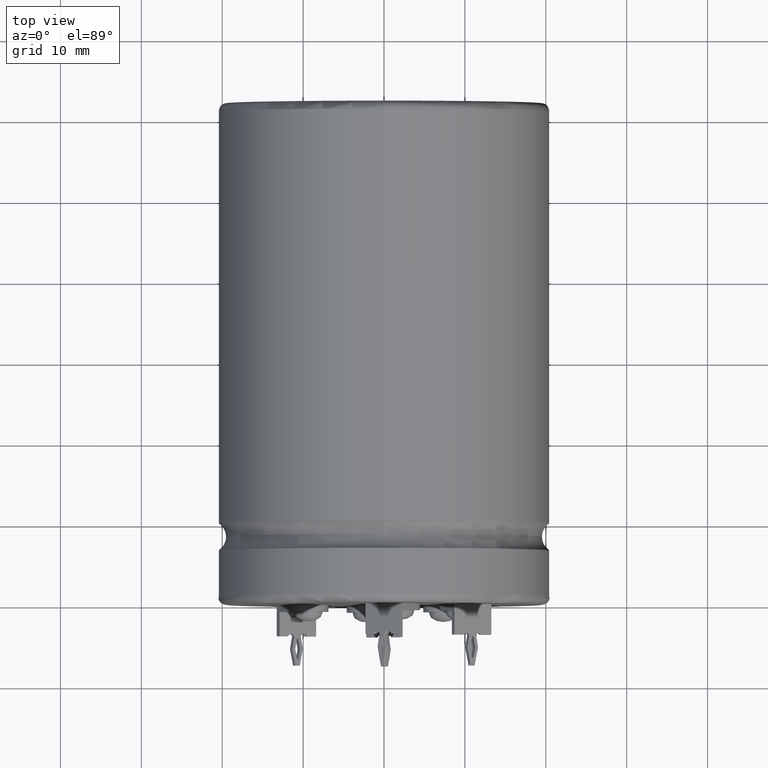
[diagram: clean part render]
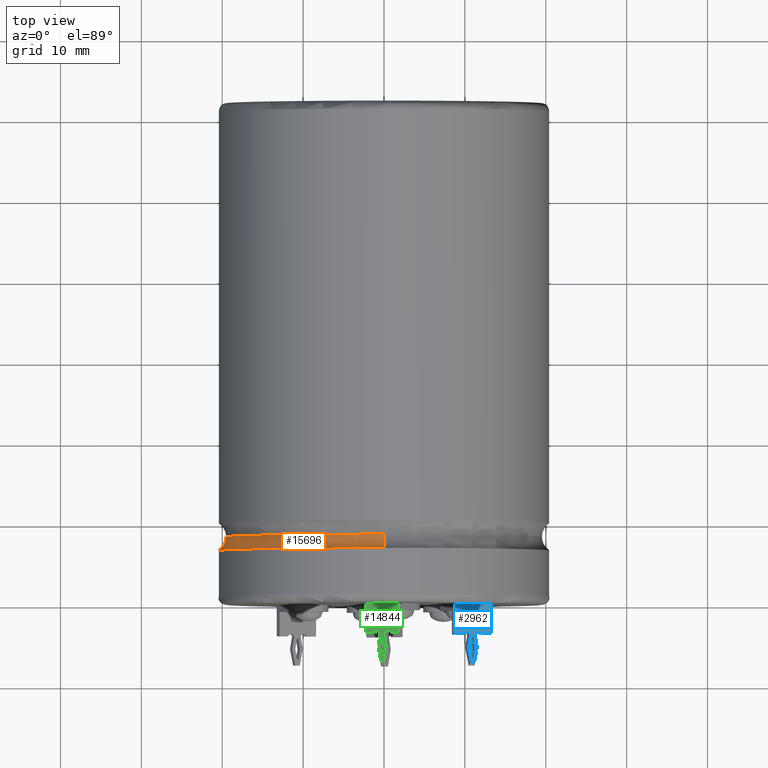
[diagram: same view with three faces highlighted in distinct colors, each labeled with its STEP entity id]
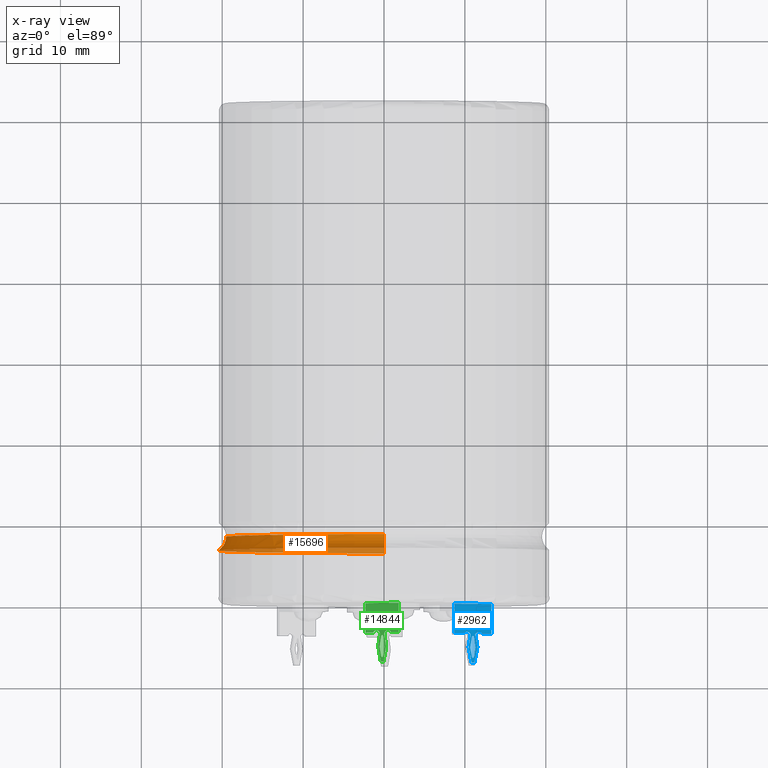
[diagram: x-ray of the same camera — body ghosted, the three highlighted faces saturated]
A machine part, top view with three faces highlighted in distinct colors.
The next image is the same camera in x-ray (body ghosted, the three faces saturated) — at least one of them is partly hidden behind the body in this view.
Their STEP definitions:

[orange] entity #15696 — the highlighted toroidal blend (fillet) surface has major radius 21.5 mm and minor (blend) radius 1.9757 mm.
#26 = DIRECTION ( 'NONE',  ( -0.0000000000000000000, -1.000000000000000000, -0.0000000000000000000 ) ) ;
#84 = CARTESIAN_POINT ( 'NONE',  ( 0.0000000000000000000, 6.702200000000027900, 0.0000000000000000000 ) ) ;
#218 = CARTESIAN_POINT ( 'NONE',  ( 0.0000000000000000000, 8.406083440007512000, -19.52434345668794800 ) ) ;
#466 = AXIS2_PLACEMENT_3D ( 'NONE', #13000, #13112, #14305 ) ;
#1448 = DIRECTION ( 'NONE',  ( -1.224646799147353500E-016, 0.0000000000000000000, -1.000000000000000000 ) ) ;
#1581 = VERTEX_POINT ( 'NONE', #9240 ) ;
#1749 = ORIENTED_EDGE ( 'NONE', *, *, #10416, .T. ) ;
#3717 = ORIENTED_EDGE ( 'NONE', *, *, #7136, .T. ) ;
#4166 = AXIS2_PLACEMENT_3D ( 'NONE', #84, #26, #9291 ) ;
#4232 = CARTESIAN_POINT ( 'NONE',  ( 2.632990618166810000E-015, 8.406083440007512000, 21.50000000000000400 ) ) ;
#4553 = VERTEX_POINT ( 'NONE', #9339 ) ;
#5018 = CARTESIAN_POINT ( 'NONE',  ( 0.0000000000000000000, 8.406083440007512000, 0.0000000000000000000 ) ) ;
#5230 = AXIS2_PLACEMENT_3D ( 'NONE', #5018, #10443, #13135 ) ;
#6788 = DIRECTION ( 'NONE',  ( 1.000000000000000000, 0.0000000000000000000, -1.224646799147353200E-016 ) ) ;
#7075 = DIRECTION ( 'NONE',  ( -0.0000000000000000000, -1.000000000000000000, -0.0000000000000000000 ) ) ;
#7136 = EDGE_CURVE ( 'NONE', #7939, #9458, #16970, .T. ) ;
#7587 = CARTESIAN_POINT ( 'NONE',  ( 2.391042471968646400E-015, 8.406083440007512000, 19.52434345668794800 ) ) ;
#7801 = TOROIDAL_SURFACE ( 'NONE', #5230, 21.50000000000000400, 1.975656543312057900 ) ;
#7939 = VERTEX_POINT ( 'NONE', #7587 ) ;
#8249 = CARTESIAN_POINT ( 'NONE',  ( 0.0000000000000000000, 8.406083440007512000, 0.0000000000000000000 ) ) ;
#8662 = ORIENTED_EDGE ( 'NONE', *, *, #12838, .F. ) ;
#8744 = EDGE_CURVE ( 'NONE', #1581, #9458, #15646, .T. ) ;
#9240 = CARTESIAN_POINT ( 'NONE',  ( 0.0000000000000000000, 6.702200000000027900, -20.49999999999999600 ) ) ;
#9291 = DIRECTION ( 'NONE',  ( 0.0000000000000000000, 0.0000000000000000000, -1.000000000000000000 ) ) ;
#9339 = CARTESIAN_POINT ( 'NONE',  ( 2.510525938252074500E-015, 6.702200000000027900, 20.49999999999999600 ) ) ;
#9458 = VERTEX_POINT ( 'NONE', #218 ) ;
#10332 = CIRCLE ( 'NONE', #4166, 20.49999999999999600 ) ;
#10416 = EDGE_CURVE ( 'NONE', #4553, #7939, #15317, .T. ) ;
#10443 = DIRECTION ( 'NONE',  ( -0.0000000000000000000, -1.000000000000000000, -0.0000000000000000000 ) ) ;
#11455 = EDGE_LOOP ( 'NONE', ( #1749, #3717, #14349, #8662 ) ) ;
#12838 = EDGE_CURVE ( 'NONE', #4553, #1581, #10332, .T. ) ;
#13000 = CARTESIAN_POINT ( 'NONE',  ( 0.0000000000000000000, 8.406083440007512000, -21.50000000000000400 ) ) ;
#13112 = DIRECTION ( 'NONE',  ( -1.000000000000000000, 0.0000000000000000000, 0.0000000000000000000 ) ) ;
#13135 = DIRECTION ( 'NONE',  ( 0.0000000000000000000, 0.0000000000000000000, -1.000000000000000000 ) ) ;
#13230 = FACE_OUTER_BOUND ( 'NONE', #11455, .T. ) ;
#14305 = DIRECTION ( 'NONE',  ( 0.0000000000000000000, 0.0000000000000000000, 1.000000000000000000 ) ) ;
#14349 = ORIENTED_EDGE ( 'NONE', *, *, #8744, .F. ) ;
#14979 = AXIS2_PLACEMENT_3D ( 'NONE', #4232, #6788, #1448 ) ;
#14988 = DIRECTION ( 'NONE',  ( 0.0000000000000000000, 0.0000000000000000000, -1.000000000000000000 ) ) ;
#15317 = CIRCLE ( 'NONE', #14979, 1.975656543312057900 ) ;
#15646 = CIRCLE ( 'NONE', #466, 1.975656543312057900 ) ;
#15696 = ADVANCED_FACE ( 'NONE', ( #13230 ), #7801, .F. ) ;
#16024 = AXIS2_PLACEMENT_3D ( 'NONE', #8249, #7075, #14988 ) ;
#16970 = CIRCLE ( 'NONE', #16024, 19.52434345668794800 ) ;

[blue] entity #2962 — the highlighted planar face has unit normal (0.4109, -0, 0.9117).
#185 = ORIENTED_EDGE ( 'NONE', *, *, #6952, .T. ) ;
#258 = CARTESIAN_POINT ( 'NONE',  ( 10.45286893172945900, -5.364050922257058000, 6.856025271843443600 ) ) ;
#498 = VECTOR ( 'NONE', #9508, 1000.000000000000100 ) ;
#714 = CARTESIAN_POINT ( 'NONE',  ( 10.86025062877432600, -4.099125568566360100, 6.672427662097844900 ) ) ;
#881 = CARTESIAN_POINT ( 'NONE',  ( 11.52912172597069900, -5.364050922257058000, 6.370982762722200700 ) ) ;
#924 = DIRECTION ( 'NONE',  ( 0.9116903457277413200, -7.575988606259171600E-015, -0.4108779788536151000 ) ) ;
#1013 = CARTESIAN_POINT ( 'NONE',  ( 4.332569500787739600, -7.249722237788693000, 9.614304189623306100 ) ) ;
#1025 = VECTOR ( 'NONE', #17042, 1000.000000000000000 ) ;
#1139 = LINE ( 'NONE', #6841, #15498 ) ;
#1230 = DIRECTION ( 'NONE',  ( -0.4108779788536151000, 0.0000000000000000000, -0.9116903457277413200 ) ) ;
#1293 = ORIENTED_EDGE ( 'NONE', *, *, #15814, .T. ) ;
#1296 = VERTEX_POINT ( 'NONE', #5981 ) ;
#1300 = CARTESIAN_POINT ( 'NONE',  ( 8.709872653650883500, 0.0000000000000000000, 7.641553813680349800 ) ) ;
#1578 = ORIENTED_EDGE ( 'NONE', *, *, #9337, .T. ) ;
#1730 = DIRECTION ( 'NONE',  ( -0.4108779788536151000, 0.0000000000000000000, -0.9116903457277413200 ) ) ;
#1777 = DIRECTION ( 'NONE',  ( -0.4108779788536151000, 0.0000000000000000000, -0.9116903457277413200 ) ) ;
#1978 = CARTESIAN_POINT ( 'NONE',  ( 10.86025062877432600, -4.099125568566360100, 6.672427662097844900 ) ) ;
#2026 = CARTESIAN_POINT ( 'NONE',  ( 4.332883201997296900, -0.8000000000000000400, 9.614162811665812200 ) ) ;
#2095 = EDGE_CURVE ( 'NONE', #9939, #14615, #5602, .T. ) ;
#2149 = DIRECTION ( 'NONE',  ( -0.4108779788536151000, 0.0000000000000000000, -0.9116903457277413200 ) ) ;
#2220 = VECTOR ( 'NONE', #11868, 1000.000000000000100 ) ;
#2245 = LINE ( 'NONE', #8059, #8878 ) ;
#2258 = VERTEX_POINT ( 'NONE', #3858 ) ;
#2413 = LINE ( 'NONE', #714, #7158 ) ;
#2438 = VERTEX_POINT ( 'NONE', #9540 ) ;
#2659 = EDGE_LOOP ( 'NONE', ( #15223, #8159, #4143, #185, #14181, #8766, #1293 ) ) ;
#2931 = DIRECTION ( 'NONE',  ( -0.1777101090255420500, -0.9808183971898837300, 0.08008988003485502400 ) ) ;
#2962 = ADVANCED_FACE ( 'NONE', ( #11346, #17250 ), #5362, .T. ) ;
#3013 = CARTESIAN_POINT ( 'NONE',  ( 11.12944775392035100, -4.100047830347318900, 6.551106677169666000 ) ) ;
#3054 = CARTESIAN_POINT ( 'NONE',  ( 4.332984147212841600, -3.650392166798338800, 9.614117317966847800 ) ) ;
#3070 = ORIENTED_EDGE ( 'NONE', *, *, #9857, .T. ) ;
#3226 = ORIENTED_EDGE ( 'NONE', *, *, #2095, .T. ) ;
#3416 = CARTESIAN_POINT ( 'NONE',  ( 12.12777785449945800, -3.650060049850621300, 6.101182143168768900 ) ) ;
#3517 = EDGE_CURVE ( 'NONE', #8294, #7265, #16798, .T. ) ;
#3537 = DIRECTION ( 'NONE',  ( 0.9116903444303439100, 5.334918938364728100E-005, -0.4108779782689077600 ) ) ;
#3601 = EDGE_CURVE ( 'NONE', #5422, #3765, #4223, .T. ) ;
#3644 = CARTESIAN_POINT ( 'NONE',  ( 9.854212803200693900, -3.650060049850622200, 7.125825891396876200 ) ) ;
#3765 = VERTEX_POINT ( 'NONE', #12990 ) ;
#3844 = VECTOR ( 'NONE', #12691, 1000.000000000000100 ) ;
#3858 = CARTESIAN_POINT ( 'NONE',  ( 8.713666275410563600, -3.650011453974225000, 7.639844115153373100 ) ) ;
#3924 = DIRECTION ( 'NONE',  ( 0.9116903457277413200, -6.060790885007357200E-015, -0.4108779788536149300 ) ) ;
#4143 = ORIENTED_EDGE ( 'NONE', *, *, #15380, .T. ) ;
#4160 = VERTEX_POINT ( 'NONE', #6302 ) ;
#4223 = LINE ( 'NONE', #16828, #3844 ) ;
#4465 = CARTESIAN_POINT ( 'NONE',  ( 12.06027536648205800, -2.562836676191187400, 6.131603970024948500 ) ) ;
#4556 = EDGE_CURVE ( 'NONE', #4160, #1296, #15040, .T. ) ;
#4676 = AXIS2_PLACEMENT_3D ( 'NONE', #16329, #1777, #5538 ) ;
#4780 = VECTOR ( 'NONE', #16906, 999.9999999999998900 ) ;
#4887 = CARTESIAN_POINT ( 'NONE',  ( 10.71086446564589800, -3.773063590840970000, 6.739752587784000300 ) ) ;
#4954 = VERTEX_POINT ( 'NONE', #15049 ) ;
#5033 = CARTESIAN_POINT ( 'NONE',  ( 13.26832438228959000, -0.8000000000000000400, 5.587163919412275500 ) ) ;
#5034 = VERTEX_POINT ( 'NONE', #7128 ) ;
#5064 = CARTESIAN_POINT ( 'NONE',  ( 4.332782276874929100, -3.649824795304792000, 9.614208296309241700 ) ) ;
#5229 = CARTESIAN_POINT ( 'NONE',  ( 11.27112619205425800, -3.773063590840963300, 6.487255446781644800 ) ) ;
#5332 = VERTEX_POINT ( 'NONE', #1300 ) ;
#5362 = PLANE ( 'NONE',  #6891 ) ;
#5417 = DIRECTION ( 'NONE',  ( -0.1596548063862584200, -0.9845471760859783000, 0.07195276825037354200 ) ) ;
#5422 = VERTEX_POINT ( 'NONE', #258 ) ;
#5476 = VECTOR ( 'NONE', #14678, 1000.000000000000000 ) ;
#5538 = DIRECTION ( 'NONE',  ( 0.9116903457277416600, 0.0000000000000000000, -0.4108779788536138200 ) ) ;
#5585 = EDGE_CURVE ( 'NONE', #5332, #5034, #14526, .T. ) ;
#5602 = CIRCLE ( 'NONE', #11893, 0.5724412898877658800 ) ;
#5611 = AXIS2_PLACEMENT_3D ( 'NONE', #10490, #1230, #3924 ) ;
#5617 = DIRECTION ( 'NONE',  ( 0.9116903457277416600, 1.156482317317876300E-014, -0.4108779788536138200 ) ) ;
#5775 = CARTESIAN_POINT ( 'NONE',  ( 8.713666275410563600, -0.7999999999999999300, 7.639844115153373100 ) ) ;
#5981 = CARTESIAN_POINT ( 'NONE',  ( 10.64791026666502000, -5.413453223012649800, 6.768124604838720700 ) ) ;
#6289 = ORIENTED_EDGE ( 'NONE', *, *, #3517, .T. ) ;
#6302 = CARTESIAN_POINT ( 'NONE',  ( 10.64751197021998900, -5.375234432593124700, 6.768304107933258400 ) ) ;
#6682 = DIRECTION ( 'NONE',  ( 0.9116903457277406600, 0.0000000000000000000, -0.4108779788536162100 ) ) ;
#6797 = CARTESIAN_POINT ( 'NONE',  ( 11.17149733917901200, -7.250101305074726300, 6.532155891210733100 ) ) ;
#6841 = CARTESIAN_POINT ( 'NONE',  ( 10.64611472069641900, -5.403919789821900500, 6.768933816323710500 ) ) ;
#6864 = CARTESIAN_POINT ( 'NONE',  ( 11.33612543079977700, -5.385117815205791900, 6.457961777096611100 ) ) ;
#6891 = AXIS2_PLACEMENT_3D ( 'NONE', #9408, #8168, #10783 ) ;
#6952 = EDGE_CURVE ( 'NONE', #15256, #1296, #1139, .T. ) ;
#6977 = CARTESIAN_POINT ( 'NONE',  ( 8.709872653650883500, -0.8000000000000000400, 7.641553813680349800 ) ) ;
#7023 = CARTESIAN_POINT ( 'NONE',  ( 10.99477367298703700, -4.126106731587879200, 6.611801204030841800 ) ) ;
#7128 = CARTESIAN_POINT ( 'NONE',  ( 13.26832438228959000, 0.0000000000000000000, 5.587163919412274600 ) ) ;
#7154 = VECTOR ( 'NONE', #12079, 1000.000000000000000 ) ;
#7158 = VECTOR ( 'NONE', #16483, 1000.000000000000100 ) ;
#7168 = EDGE_CURVE ( 'NONE', #2438, #4954, #10261, .T. ) ;
#7265 = VERTEX_POINT ( 'NONE', #5775 ) ;
#7346 = ORIENTED_EDGE ( 'NONE', *, *, #14126, .T. ) ;
#7472 = CARTESIAN_POINT ( 'NONE',  ( 4.333196941106638000, -7.250501460440226300, 9.614021416627752000 ) ) ;
#7645 = VERTEX_POINT ( 'NONE', #12485 ) ;
#7746 = VECTOR ( 'NONE', #2931, 1000.000000000000000 ) ;
#7791 = CARTESIAN_POINT ( 'NONE',  ( 10.99100262454121500, -7.250111867899274600, 6.613500729281755100 ) ) ;
#7964 = EDGE_CURVE ( 'NONE', #15929, #8813, #14367, .T. ) ;
#7982 = VECTOR ( 'NONE', #15119, 1000.000000000000100 ) ;
#8022 = CIRCLE ( 'NONE', #4676, 0.1499999999999993600 ) ;
#8059 = CARTESIAN_POINT ( 'NONE',  ( 10.98260081394586500, -2.097340445297920300, 6.617287233079132100 ) ) ;
#8076 = CARTESIAN_POINT ( 'NONE',  ( 10.59102308465578400, 0.4209447762888912600, 6.793762356160935500 ) ) ;
#8159 = ORIENTED_EDGE ( 'NONE', *, *, #7168, .T. ) ;
#8168 = DIRECTION ( 'NONE',  ( 0.4108779788536149900, -0.0000000000000000000, 0.9116903457277412100 ) ) ;
#8236 = AXIS2_PLACEMENT_3D ( 'NONE', #11919, #11862, #6682 ) ;
#8240 = ORIENTED_EDGE ( 'NONE', *, *, #13310, .T. ) ;
#8294 = VERTEX_POINT ( 'NONE', #6977 ) ;
#8463 = LINE ( 'NONE', #5033, #1025 ) ;
#8484 = ORIENTED_EDGE ( 'NONE', *, *, #13103, .F. ) ;
#8766 = ORIENTED_EDGE ( 'NONE', *, *, #15912, .T. ) ;
#8813 = VERTEX_POINT ( 'NONE', #4887 ) ;
#8865 = CARTESIAN_POINT ( 'NONE',  ( 11.73746370158261800, -4.030061486482051000, 6.277087801290462300 ) ) ;
#8878 = VECTOR ( 'NONE', #5417, 1000.000000000000200 ) ;
#9045 = LINE ( 'NONE', #8076, #5476 ) ;
#9222 = VECTOR ( 'NONE', #12388, 1000.000000000000100 ) ;
#9337 = EDGE_CURVE ( 'NONE', #7645, #5034, #8463, .T. ) ;
#9408 = CARTESIAN_POINT ( 'NONE',  ( 4.332883201997296900, -0.8000000000000000400, 9.614162811665812200 ) ) ;
#9457 = LINE ( 'NONE', #13384, #7154 ) ;
#9508 = DIRECTION ( 'NONE',  ( 0.1583843245419407400, -0.9847940262057001100, -0.07138019115244805000 ) ) ;
#9540 = CARTESIAN_POINT ( 'NONE',  ( 11.33761067640696400, -5.394352700069782200, 6.457292410884671000 ) ) ;
#9684 = ORIENTED_EDGE ( 'NONE', *, *, #14912, .T. ) ;
#9697 = LINE ( 'NONE', #7472, #11964 ) ;
#9713 = VECTOR ( 'NONE', #13712, 1000.000000000000100 ) ;
#9840 = DIRECTION ( 'NONE',  ( 0.1856428613385576500, 0.9790489760389349300, -0.08366498999668797700 ) ) ;
#9851 = AXIS2_PLACEMENT_3D ( 'NONE', #7023, #1730, #5617 ) ;
#9857 = EDGE_CURVE ( 'NONE', #2258, #15929, #11524, .T. ) ;
#9939 = VERTEX_POINT ( 'NONE', #5229 ) ;
#9989 = ORIENTED_EDGE ( 'NONE', *, *, #16457, .T. ) ;
#10261 = LINE ( 'NONE', #10911, #7746 ) ;
#10301 = VERTEX_POINT ( 'NONE', #881 ) ;
#10490 = CARTESIAN_POINT ( 'NONE',  ( 10.24452695611753600, -4.030061486482051000, 6.949920233275182800 ) ) ;
#10783 = DIRECTION ( 'NONE',  ( 0.9116903457277412100, 0.0000000000000000000, -0.4108779788536149900 ) ) ;
#10911 = CARTESIAN_POINT ( 'NONE',  ( 11.12920985136853600, -6.544559428927629900, 6.551213894406429500 ) ) ;
#11103 = EDGE_LOOP ( 'NONE', ( #3226, #9989, #1578, #15704, #8484, #6289, #8240, #3070, #16760, #15812, #13075, #7346, #15013, #9684, #15890 ) ) ;
#11194 = EDGE_CURVE ( 'NONE', #11321, #2438, #13171, .T. ) ;
#11321 = VERTEX_POINT ( 'NONE', #3013 ) ;
#11346 = FACE_BOUND ( 'NONE', #2659, .T. ) ;
#11524 = LINE ( 'NONE', #5064, #2220 ) ;
#11785 = VERTEX_POINT ( 'NONE', #6797 ) ;
#11862 = DIRECTION ( 'NONE',  ( 0.4108779788536151000, -0.0000000000000000000, 0.9116903457277413200 ) ) ;
#11868 = DIRECTION ( 'NONE',  ( 0.9116903450399052000, -3.884487852157243400E-005, -0.4108779785436231200 ) ) ;
#11893 = AXIS2_PLACEMENT_3D ( 'NONE', #8865, #2149, #924 ) ;
#11919 = CARTESIAN_POINT ( 'NONE',  ( 10.73719399969513200, -5.393221874607470500, 6.727886469221922500 ) ) ;
#11964 = VECTOR ( 'NONE', #3537, 999.9999999999998900 ) ;
#12079 = DIRECTION ( 'NONE',  ( 0.0000000000000000000, -1.000000000000000000, 0.0000000000000000000 ) ) ;
#12388 = DIRECTION ( 'NONE',  ( 0.9116903450399052000, 3.884487852124507300E-005, -0.4108779785436231200 ) ) ;
#12418 = VECTOR ( 'NONE', #9840, 1000.000000000000100 ) ;
#12485 = CARTESIAN_POINT ( 'NONE',  ( 13.26832438228959000, -3.650011453974225000, 5.587163919412275500 ) ) ;
#12587 = CARTESIAN_POINT ( 'NONE',  ( 8.709872653650883500, -0.8000000000000000400, 7.641553813680349800 ) ) ;
#12691 = DIRECTION ( 'NONE',  ( 0.1856428613385575100, -0.9790489760389349300, -0.08366498999668792200 ) ) ;
#12755 = LINE ( 'NONE', #3054, #9222 ) ;
#12879 = DIRECTION ( 'NONE',  ( 0.0000000000000000000, 1.000000000000000000, 0.0000000000000000000 ) ) ;
#12990 = CARTESIAN_POINT ( 'NONE',  ( 10.81049331852114500, -7.250101305074725400, 6.694852143354911100 ) ) ;
#13070 = VERTEX_POINT ( 'NONE', #1978 ) ;
#13075 = ORIENTED_EDGE ( 'NONE', *, *, #3601, .T. ) ;
#13103 = EDGE_CURVE ( 'NONE', #8294, #5332, #16822, .T. ) ;
#13171 = LINE ( 'NONE', #6864, #498 ) ;
#13310 = EDGE_CURVE ( 'NONE', #7265, #2258, #9457, .T. ) ;
#13384 = CARTESIAN_POINT ( 'NONE',  ( 8.713666275410563600, -0.7999999999999999300, 7.639844115153373100 ) ) ;
#13712 = DIRECTION ( 'NONE',  ( 0.9116903457277413200, 0.0000000000000000000, -0.4108779788536149900 ) ) ;
#13741 = EDGE_CURVE ( 'NONE', #10301, #9939, #9045, .T. ) ;
#14126 = EDGE_CURVE ( 'NONE', #3765, #15234, #15458, .T. ) ;
#14181 = ORIENTED_EDGE ( 'NONE', *, *, #4556, .F. ) ;
#14334 = LINE ( 'NONE', #4465, #12418 ) ;
#14346 = CARTESIAN_POINT ( 'NONE',  ( 10.86115385227884300, -6.545667887719573300, 6.672020599930599300 ) ) ;
#14367 = CIRCLE ( 'NONE', #5611, 0.5724412898877639900 ) ;
#14526 = LINE ( 'NONE', #14899, #9713 ) ;
#14615 = VERTEX_POINT ( 'NONE', #3416 ) ;
#14678 = DIRECTION ( 'NONE',  ( -0.1596548063862585900, 0.9845471760859783000, 0.07195276825037361100 ) ) ;
#14758 = DIRECTION ( 'NONE',  ( -0.1844472502205626300, 0.9793208126915433600, 0.08312615542203362400 ) ) ;
#14899 = CARTESIAN_POINT ( 'NONE',  ( 4.332883201997296900, 0.0000000000000000000, 9.614162811665812200 ) ) ;
#14912 = EDGE_CURVE ( 'NONE', #11785, #10301, #14334, .T. ) ;
#15013 = ORIENTED_EDGE ( 'NONE', *, *, #15593, .T. ) ;
#15040 = CIRCLE ( 'NONE', #8236, 0.09999999999999968600 ) ;
#15049 = CARTESIAN_POINT ( 'NONE',  ( 11.12920985136853400, -6.544559428927629000, 6.551213894406431300 ) ) ;
#15119 = DIRECTION ( 'NONE',  ( 0.9116903457277413200, 0.0000000000000000000, -0.4108779788536149900 ) ) ;
#15223 = ORIENTED_EDGE ( 'NONE', *, *, #11194, .T. ) ;
#15234 = VERTEX_POINT ( 'NONE', #7791 ) ;
#15256 = VERTEX_POINT ( 'NONE', #14346 ) ;
#15380 = EDGE_CURVE ( 'NONE', #4954, #15256, #8022, .T. ) ;
#15458 = LINE ( 'NONE', #1013, #4780 ) ;
#15498 = VECTOR ( 'NONE', #14758, 1000.000000000000100 ) ;
#15593 = EDGE_CURVE ( 'NONE', #15234, #11785, #9697, .T. ) ;
#15704 = ORIENTED_EDGE ( 'NONE', *, *, #5585, .F. ) ;
#15812 = ORIENTED_EDGE ( 'NONE', *, *, #17235, .T. ) ;
#15814 = EDGE_CURVE ( 'NONE', #13070, #11321, #17234, .T. ) ;
#15890 = ORIENTED_EDGE ( 'NONE', *, *, #13741, .T. ) ;
#15912 = EDGE_CURVE ( 'NONE', #4160, #13070, #2413, .T. ) ;
#15929 = VERTEX_POINT ( 'NONE', #3644 ) ;
#16329 = CARTESIAN_POINT ( 'NONE',  ( 10.99507945182400800, -6.515320865111806200, 6.611663396505403700 ) ) ;
#16457 = EDGE_CURVE ( 'NONE', #14615, #7645, #12755, .T. ) ;
#16483 = DIRECTION ( 'NONE',  ( 0.1639897722881738000, 0.9836895816150803600, -0.07390643819601341900 ) ) ;
#16619 = VECTOR ( 'NONE', #12879, 1000.000000000000000 ) ;
#16760 = ORIENTED_EDGE ( 'NONE', *, *, #7964, .T. ) ;
#16798 = LINE ( 'NONE', #2026, #7982 ) ;
#16822 = LINE ( 'NONE', #12587, #16619 ) ;
#16828 = CARTESIAN_POINT ( 'NONE',  ( 9.369583319845840900, 0.3490137300818481600, 7.344237310961450900 ) ) ;
#16906 = DIRECTION ( 'NONE',  ( 0.9116903444303439100, -5.334918938364690100E-005, -0.4108779782689077600 ) ) ;
#17042 = DIRECTION ( 'NONE',  ( 0.0000000000000000000, 1.000000000000000000, 0.0000000000000000000 ) ) ;
#17234 = CIRCLE ( 'NONE', #9851, 0.1499999999999993600 ) ;
#17235 = EDGE_CURVE ( 'NONE', #8813, #5422, #2245, .T. ) ;
#17250 = FACE_OUTER_BOUND ( 'NONE', #11103, .T. ) ;

[green] entity #14844 — the highlighted planar face has unit normal (-0.5701, 0, 0.8215).
#255 = CARTESIAN_POINT ( 'NONE',  ( 1.825806408236581700, -3.650000000113169400, 14.25396594841019700 ) ) ;
#275 = DIRECTION ( 'NONE',  ( -1.445602896647339200E-016, 1.000000000000000000, -0.0000000000000000000 ) ) ;
#390 = CARTESIAN_POINT ( 'NONE',  ( -0.3720110248289471000, -7.369540987011197000, 12.72871747835965200 ) ) ;
#485 = LINE ( 'NONE', #8298, #4570 ) ;
#695 = ORIENTED_EDGE ( 'NONE', *, *, #15689, .T. ) ;
#790 = CARTESIAN_POINT ( 'NONE',  ( 0.5781088620844202500, -2.475001182379361200, 13.38808475886115600 ) ) ;
#795 = EDGE_CURVE ( 'NONE', #7100, #7754, #13977, .T. ) ;
#956 = DIRECTION ( 'NONE',  ( 0.8215474416061123700, -3.884487851822318500E-005, 0.5701401579274404400 ) ) ;
#1001 = DIRECTION ( 'NONE',  ( 0.5701401583575898000, -0.0000000000000000000, -0.8215474422259390100 ) ) ;
#1019 = VERTEX_POINT ( 'NONE', #6354 ) ;
#1319 = EDGE_CURVE ( 'NONE', #10498, #7100, #15652, .T. ) ;
#1341 = VERTEX_POINT ( 'NONE', #4602 ) ;
#1425 = CARTESIAN_POINT ( 'NONE',  ( 0.4786323663280888700, -3.942100817086518800, 13.31904973771897400 ) ) ;
#1464 = VERTEX_POINT ( 'NONE', #8882 ) ;
#1527 = VERTEX_POINT ( 'NONE', #4866 ) ;
#1546 = CARTESIAN_POINT ( 'NONE',  ( -2.285343422348117900, -0.7999999999999993800, 11.40089685590522700 ) ) ;
#1552 = CARTESIAN_POINT ( 'NONE',  ( -2.281923584677595200, -0.8000000000000000400, 11.40327016594286400 ) ) ;
#1619 = ORIENTED_EDGE ( 'NONE', *, *, #12868, .T. ) ;
#1767 = EDGE_CURVE ( 'NONE', #1341, #11641, #10561, .T. ) ;
#1771 = DIRECTION ( 'NONE',  ( 0.8215474422259389000, 0.0000000000000000000, 0.5701401583575898000 ) ) ;
#1859 = LINE ( 'NONE', #1552, #8471 ) ;
#2218 = VECTOR ( 'NONE', #6171, 1000.000000000000100 ) ;
#2266 = ORIENTED_EDGE ( 'NONE', *, *, #6819, .T. ) ;
#2324 = EDGE_CURVE ( 'NONE', #12186, #1464, #1859, .T. ) ;
#2427 = EDGE_LOOP ( 'NONE', ( #3567, #1619, #5175, #4660, #17195, #3434, #695, #13527, #9087, #5643, #14355, #11002, #7138, #17075 ) ) ;
#2595 = LINE ( 'NONE', #15534, #4841 ) ;
#2647 = VECTOR ( 'NONE', #17140, 1000.000000000000100 ) ;
#2800 = DIRECTION ( 'NONE',  ( 0.1477753697907305300, -0.9836895816150820200, 0.1025536303850698600 ) ) ;
#2887 = LINE ( 'NONE', #16912, #3900 ) ;
#3055 = LINE ( 'NONE', #4671, #2218 ) ;
#3154 = ORIENTED_EDGE ( 'NONE', *, *, #4797, .T. ) ;
#3309 = DIRECTION ( 'NONE',  ( 0.5701401583575898000, -0.0000000000000000000, -0.8215474422259390100 ) ) ;
#3434 = ORIENTED_EDGE ( 'NONE', *, *, #7582, .F. ) ;
#3439 = VERTEX_POINT ( 'NONE', #12107 ) ;
#3522 = CARTESIAN_POINT ( 'NONE',  ( -0.2331708759347950700, -4.126099645221429100, 12.82507021516865300 ) ) ;
#3567 = ORIENTED_EDGE ( 'NONE', *, *, #5897, .T. ) ;
#3878 = CARTESIAN_POINT ( 'NONE',  ( -0.5421100509287696300, -5.394345613696155600, 12.61067160457023200 ) ) ;
#3900 = VECTOR ( 'NONE', #956, 1000.000000000000100 ) ;
#4061 = PLANE ( 'NONE',  #10471 ) ;
#4090 = FACE_OUTER_BOUND ( 'NONE', #2427, .T. ) ;
#4263 = CARTESIAN_POINT ( 'NONE',  ( -0.7847182888607957500, 0.3792760553353475300, 12.44230555279524400 ) ) ;
#4570 = VECTOR ( 'NONE', #1771, 1000.000000000000000 ) ;
#4602 = CARTESIAN_POINT ( 'NONE',  ( 0.08263261810201282000, -5.394379270257526400, 13.04423254815843700 ) ) ;
#4660 = ORIENTED_EDGE ( 'NONE', *, *, #13883, .F. ) ;
#4671 = CARTESIAN_POINT ( 'NONE',  ( 0.2599933659139153600, -5.335717497247960000, 13.16731793513245900 ) ) ;
#4765 = VERTEX_POINT ( 'NONE', #10417 ) ;
#4797 = EDGE_CURVE ( 'NONE', #7986, #7377, #9573, .T. ) ;
#4841 = VECTOR ( 'NONE', #16838, 1000.000000000000100 ) ;
#4844 = EDGE_CURVE ( 'NONE', #16366, #1019, #5159, .T. ) ;
#4866 = CARTESIAN_POINT ( 'NONE',  ( -0.3543147478750385800, -6.544552342560851200, 12.74099839803180800 ) ) ;
#4924 = EDGE_CURVE ( 'NONE', #7754, #4765, #8496, .T. ) ;
#5096 = VERTEX_POINT ( 'NONE', #8476 ) ;
#5159 = LINE ( 'NONE', #15925, #5971 ) ;
#5175 = ORIENTED_EDGE ( 'NONE', *, *, #12529, .T. ) ;
#5215 = DIRECTION ( 'NONE',  ( 0.8215474416061123700, 3.884487851822306300E-005, 0.5701401579274404400 ) ) ;
#5500 = DIRECTION ( 'NONE',  ( 0.5701401583575898000, -0.0000000000000000000, -0.8215474422259390100 ) ) ;
#5643 = ORIENTED_EDGE ( 'NONE', *, *, #4924, .T. ) ;
#5720 = VECTOR ( 'NONE', #2800, 1000.000000000000200 ) ;
#5897 = EDGE_CURVE ( 'NONE', #1019, #9446, #8039, .T. ) ;
#5971 = VECTOR ( 'NONE', #14631, 1000.000000000000100 ) ;
#5988 = CARTESIAN_POINT ( 'NONE',  ( -0.7146855429494054500, -5.364043813795065700, 12.49090710492953500 ) ) ;
#6022 = EDGE_CURVE ( 'NONE', #3439, #1341, #16420, .T. ) ;
#6171 = DIRECTION ( 'NONE',  ( 0.1672877530971000100, 0.9790489172935145100, 0.1160948974336111800 ) ) ;
#6181 = VECTOR ( 'NONE', #6833, 1000.000000000000100 ) ;
#6203 = CARTESIAN_POINT ( 'NONE',  ( 0.03312428078989372600, -7.250084765456358000, 13.00987459166760600 ) ) ;
#6354 = CARTESIAN_POINT ( 'NONE',  ( 0.02518472914797891000, -3.790286514225212700, 13.00436467586999200 ) ) ;
#6505 = CARTESIAN_POINT ( 'NONE',  ( -6.083021313399942900, -0.8000000000000000400, 8.765372036633818800 ) ) ;
#6716 = CARTESIAN_POINT ( 'NONE',  ( -2.283633503512856800, -0.7999999999999997100, 11.40208351092404700 ) ) ;
#6819 = EDGE_CURVE ( 'NONE', #1527, #7986, #2595, .T. ) ;
#6833 = DIRECTION ( 'NONE',  ( 0.1672877530970997800, -0.9790489172935145100, 0.1160948974336110000 ) ) ;
#6899 = EDGE_CURVE ( 'NONE', #11496, #16720, #14258, .T. ) ;
#6993 = FACE_BOUND ( 'NONE', #12269, .T. ) ;
#7100 = VERTEX_POINT ( 'NONE', #13289 ) ;
#7135 = AXIS2_PLACEMENT_3D ( 'NONE', #1425, #15858, #11772 ) ;
#7138 = ORIENTED_EDGE ( 'NONE', *, *, #15590, .T. ) ;
#7377 = VERTEX_POINT ( 'NONE', #10016 ) ;
#7427 = CARTESIAN_POINT ( 'NONE',  ( 1.825813626452101000, 0.0000000000000000000, 14.25397095773081300 ) ) ;
#7516 = DIRECTION ( 'NONE',  ( 0.8215474422259394500, 0.0000000000000000000, 0.5701401583575891300 ) ) ;
#7582 = EDGE_CURVE ( 'NONE', #8062, #12186, #11841, .T. ) ;
#7739 = CARTESIAN_POINT ( 'NONE',  ( -0.06358559076272749000, -2.092535764416989100, 12.94275956136289100 ) ) ;
#7754 = VERTEX_POINT ( 'NONE', #5988 ) ;
#7986 = VERTEX_POINT ( 'NONE', #3878 ) ;
#8039 = CIRCLE ( 'NONE', #7135, 0.5724412898877806500 ) ;
#8062 = VERTEX_POINT ( 'NONE', #15781 ) ;
#8212 = CIRCLE ( 'NONE', #9393, 0.1499999999999991300 ) ;
#8298 = CARTESIAN_POINT ( 'NONE',  ( -6.083021313399942900, -0.0000000000000000000, 8.765372036633818800 ) ) ;
#8324 = VECTOR ( 'NONE', #275, 1000.000000000000000 ) ;
#8471 = VECTOR ( 'NONE', #10626, 1000.000000000000000 ) ;
#8476 = CARTESIAN_POINT ( 'NONE',  ( 1.825813626452101900, -3.649999999771873500, 14.25397095773081600 ) ) ;
#8496 = LINE ( 'NONE', #390, #6181 ) ;
#8666 = CARTESIAN_POINT ( 'NONE',  ( -0.7188480310217156800, -5.392529208623407100, 12.48801840795754000 ) ) ;
#8882 = CARTESIAN_POINT ( 'NONE',  ( -2.281923584677595200, 0.0000000000000000000, 11.40327016594286400 ) ) ;
#9087 = ORIENTED_EDGE ( 'NONE', *, *, #795, .T. ) ;
#9169 = ORIENTED_EDGE ( 'NONE', *, *, #6022, .T. ) ;
#9318 = VECTOR ( 'NONE', #11367, 1000.000000000000000 ) ;
#9393 = AXIS2_PLACEMENT_3D ( 'NONE', #14995, #5500, #12166 ) ;
#9446 = VERTEX_POINT ( 'NONE', #11890 ) ;
#9573 = LINE ( 'NONE', #7739, #15224 ) ;
#9654 = DIRECTION ( 'NONE',  ( -0.1438690213627395200, -0.9845471760859784100, -0.09984269003413857900 ) ) ;
#9981 = CARTESIAN_POINT ( 'NONE',  ( -0.2297613266508869700, -7.250097195817484200, 12.82743638523837900 ) ) ;
#10016 = CARTESIAN_POINT ( 'NONE',  ( -0.3545291279370946200, -4.100040743980867900, 12.74084962186107500 ) ) ;
#10417 = CARTESIAN_POINT ( 'NONE',  ( -0.3924214146524754300, -7.250089504829675000, 12.71455300983596400 ) ) ;
#10468 = DIRECTION ( 'NONE',  ( -0.5701401583575898000, 0.0000000000000000000, 0.8215474422259389000 ) ) ;
#10471 = AXIS2_PLACEMENT_3D ( 'NONE', #6505, #10468, #15878 ) ;
#10498 = VERTEX_POINT ( 'NONE', #16283 ) ;
#10537 = LINE ( 'NONE', #15386, #9318 ) ;
#10561 = LINE ( 'NONE', #790, #16458 ) ;
#10626 = DIRECTION ( 'NONE',  ( 0.0000000000000000000, 1.000000000000000000, 0.0000000000000000000 ) ) ;
#10661 = VECTOR ( 'NONE', #5215, 1000.000000000000100 ) ;
#10680 = VERTEX_POINT ( 'NONE', #7427 ) ;
#11002 = ORIENTED_EDGE ( 'NONE', *, *, #6899, .T. ) ;
#11094 = CARTESIAN_POINT ( 'NONE',  ( 0.2551533157744574300, -5.364043813795063900, 13.16395902143966800 ) ) ;
#11244 = CARTESIAN_POINT ( 'NONE',  ( -0.9381645935030376000, -3.942100817086518800, 12.33581638865023000 ) ) ;
#11367 = DIRECTION ( 'NONE',  ( 0.0000000000000000000, 1.000000000000000000, 0.0000000000000000000 ) ) ;
#11496 = VERTEX_POINT ( 'NONE', #9981 ) ;
#11561 = DIRECTION ( 'NONE',  ( 0.1427241577426715000, 0.9847940262056996700, 0.09904817386611922100 ) ) ;
#11641 = VERTEX_POINT ( 'NONE', #13063 ) ;
#11772 = DIRECTION ( 'NONE',  ( 0.8215474422259395600, 0.0000000000000000000, 0.5701401583575888000 ) ) ;
#11841 = LINE ( 'NONE', #1546, #8324 ) ;
#11890 = CARTESIAN_POINT ( 'NONE',  ( 0.8831076152423154000, -3.650044573339543700, 13.59974878273439500 ) ) ;
#12107 = CARTESIAN_POINT ( 'NONE',  ( -0.1119487269767697300, -4.099118482199910900, 12.90919635524416300 ) ) ;
#12166 = DIRECTION ( 'NONE',  ( 0.8215474422259397800, 0.0000000000000000000, 0.5701401583575886900 ) ) ;
#12186 = VERTEX_POINT ( 'NONE', #6716 ) ;
#12269 = EDGE_LOOP ( 'NONE', ( #15543, #9169, #13301, #12951, #2266, #3154 ) ) ;
#12500 = EDGE_CURVE ( 'NONE', #4765, #11496, #2887, .T. ) ;
#12529 = EDGE_CURVE ( 'NONE', #5096, #10680, #10537, .T. ) ;
#12611 = VECTOR ( 'NONE', #16421, 1000.000000000000100 ) ;
#12655 = DIRECTION ( 'NONE',  ( -0.1662101253486868400, -0.9793208126920165400, -0.1153470418338589100 ) ) ;
#12868 = EDGE_CURVE ( 'NONE', #9446, #5096, #13890, .T. ) ;
#12951 = ORIENTED_EDGE ( 'NONE', *, *, #15714, .T. ) ;
#13063 = CARTESIAN_POINT ( 'NONE',  ( -0.1127626447321978800, -6.545660801352783100, 12.90863150996059300 ) ) ;
#13289 = CARTESIAN_POINT ( 'NONE',  ( -0.4847169563229276100, -3.790286514225212700, 12.65050145049921100 ) ) ;
#13301 = ORIENTED_EDGE ( 'NONE', *, *, #1767, .T. ) ;
#13527 = ORIENTED_EDGE ( 'NONE', *, *, #1319, .T. ) ;
#13883 = EDGE_CURVE ( 'NONE', #1464, #10680, #485, .T. ) ;
#13890 = LINE ( 'NONE', #255, #12611 ) ;
#13901 = DIRECTION ( 'NONE',  ( 0.8215474422259382300, 0.0000000000000000000, 0.5701401583575908000 ) ) ;
#13977 = LINE ( 'NONE', #8666, #16934 ) ;
#14072 = CIRCLE ( 'NONE', #16472, 0.1499999999999990200 ) ;
#14258 = LINE ( 'NONE', #6203, #10661 ) ;
#14355 = ORIENTED_EDGE ( 'NONE', *, *, #12500, .T. ) ;
#14631 = DIRECTION ( 'NONE',  ( -0.1438690213627400200, 0.9845471760859781900, -0.09984269003413888400 ) ) ;
#14844 = ADVANCED_FACE ( 'NONE', ( #6993, #4090 ), #4061, .T. ) ;
#14995 = CARTESIAN_POINT ( 'NONE',  ( -0.2334464210500605000, -6.515313778745357900, 12.82487899147592700 ) ) ;
#15224 = VECTOR ( 'NONE', #11561, 999.9999999999998900 ) ;
#15386 = CARTESIAN_POINT ( 'NONE',  ( 1.825813626452101900, -0.8000000000000000400, 14.25397095773081600 ) ) ;
#15534 = CARTESIAN_POINT ( 'NONE',  ( -1.474260356775773700, 0.3148789337982471600, 11.96377491221521100 ) ) ;
#15543 = ORIENTED_EDGE ( 'NONE', *, *, #16014, .T. ) ;
#15590 = EDGE_CURVE ( 'NONE', #16720, #16366, #3055, .T. ) ;
#15652 = CIRCLE ( 'NONE', #16879, 0.5724412898877817600 ) ;
#15689 = EDGE_CURVE ( 'NONE', #8062, #10498, #15983, .T. ) ;
#15714 = EDGE_CURVE ( 'NONE', #11641, #1527, #8212, .T. ) ;
#15731 = CARTESIAN_POINT ( 'NONE',  ( -1.265005319206884200, -3.650048244099708800, 12.10899440183275600 ) ) ;
#15781 = CARTESIAN_POINT ( 'NONE',  ( -2.285343422348117500, -3.649999999886830400, 11.40089685590522700 ) ) ;
#15858 = DIRECTION ( 'NONE',  ( 0.5701401583575898000, -0.0000000000000000000, -0.8215474422259390100 ) ) ;
#15878 = DIRECTION ( 'NONE',  ( 0.8215474422259389000, 0.0000000000000000000, 0.5701401583575898000 ) ) ;
#15925 = CARTESIAN_POINT ( 'NONE',  ( 0.03045275909839698800, -3.826337527585089500, 13.00802060037999500 ) ) ;
#15983 = LINE ( 'NONE', #15731, #2647 ) ;
#16014 = EDGE_CURVE ( 'NONE', #7377, #3439, #14072, .T. ) ;
#16283 = CARTESIAN_POINT ( 'NONE',  ( -1.342639842417263400, -3.650044573339543200, 12.05511734363480900 ) ) ;
#16366 = VERTEX_POINT ( 'NONE', #11094 ) ;
#16420 = LINE ( 'NONE', #4263, #5720 ) ;
#16421 = DIRECTION ( 'NONE',  ( 0.8215474416061123700, 3.884487851669969800E-005, 0.5701401579274404400 ) ) ;
#16458 = VECTOR ( 'NONE', #12655, 1000.000000000000200 ) ;
#16472 = AXIS2_PLACEMENT_3D ( 'NONE', #3522, #1001, #7516 ) ;
#16720 = VERTEX_POINT ( 'NONE', #17215 ) ;
#16838 = DIRECTION ( 'NONE',  ( -0.1601391154465226500, 0.9808183971903220400, -0.1111338626927589100 ) ) ;
#16879 = AXIS2_PLACEMENT_3D ( 'NONE', #11244, #3309, #13901 ) ;
#16912 = CARTESIAN_POINT ( 'NONE',  ( -0.2297613266508868300, -7.250097195817484200, 12.82743638523837900 ) ) ;
#16934 = VECTOR ( 'NONE', #9654, 1000.000000000000100 ) ;
#17075 = ORIENTED_EDGE ( 'NONE', *, *, #4844, .T. ) ;
#17140 = DIRECTION ( 'NONE',  ( 0.8215474416061123700, -3.884487851669973800E-005, 0.5701401579274404400 ) ) ;
#17195 = ORIENTED_EDGE ( 'NONE', *, *, #2324, .F. ) ;
#17215 = CARTESIAN_POINT ( 'NONE',  ( -0.06711081252247229300, -7.250089504829675000, 12.94031311653324000 ) ) ;